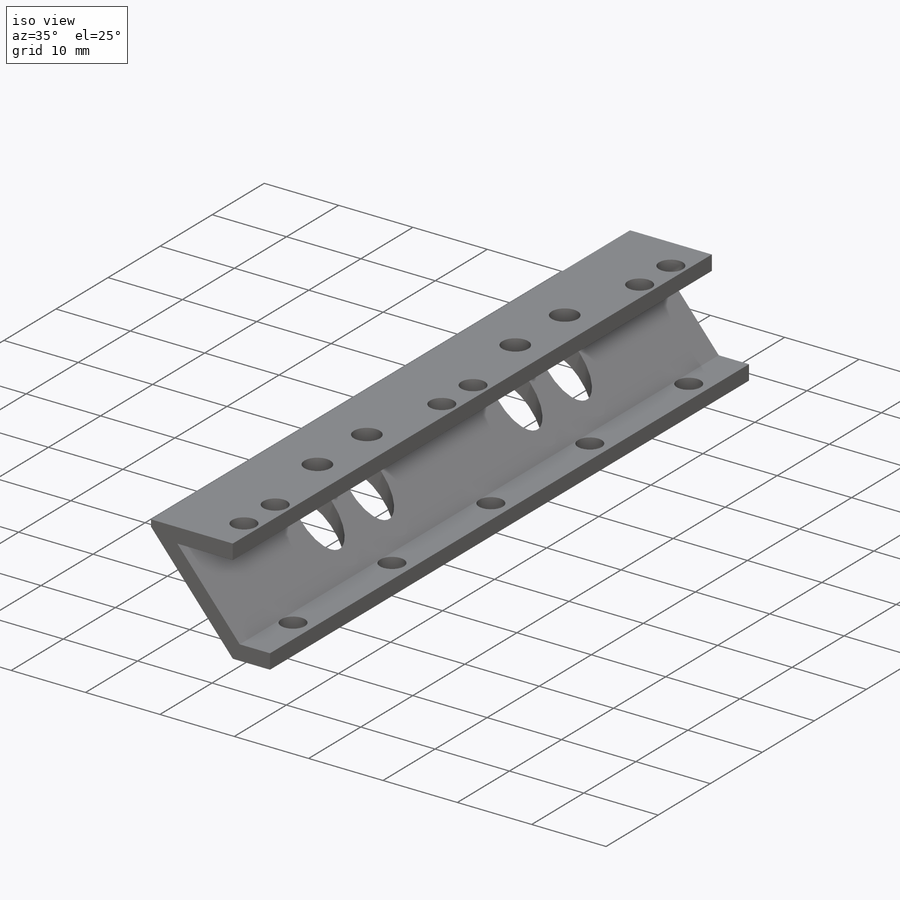
[diagram: iso view]
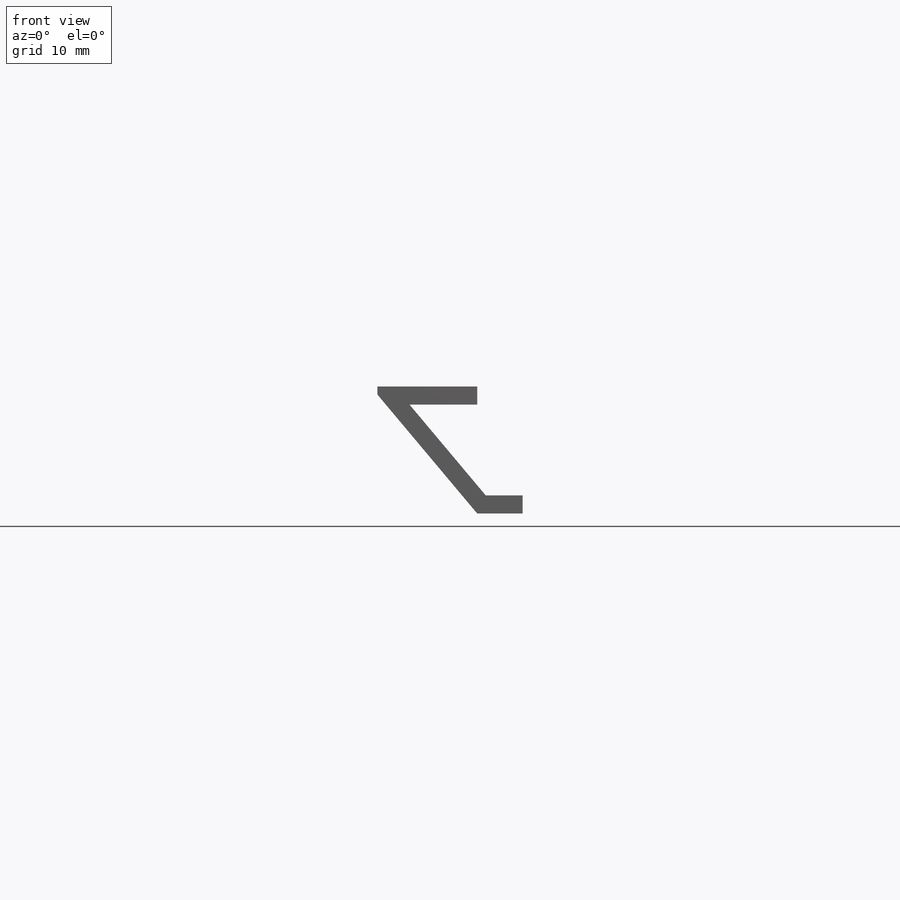
[diagram: front view]
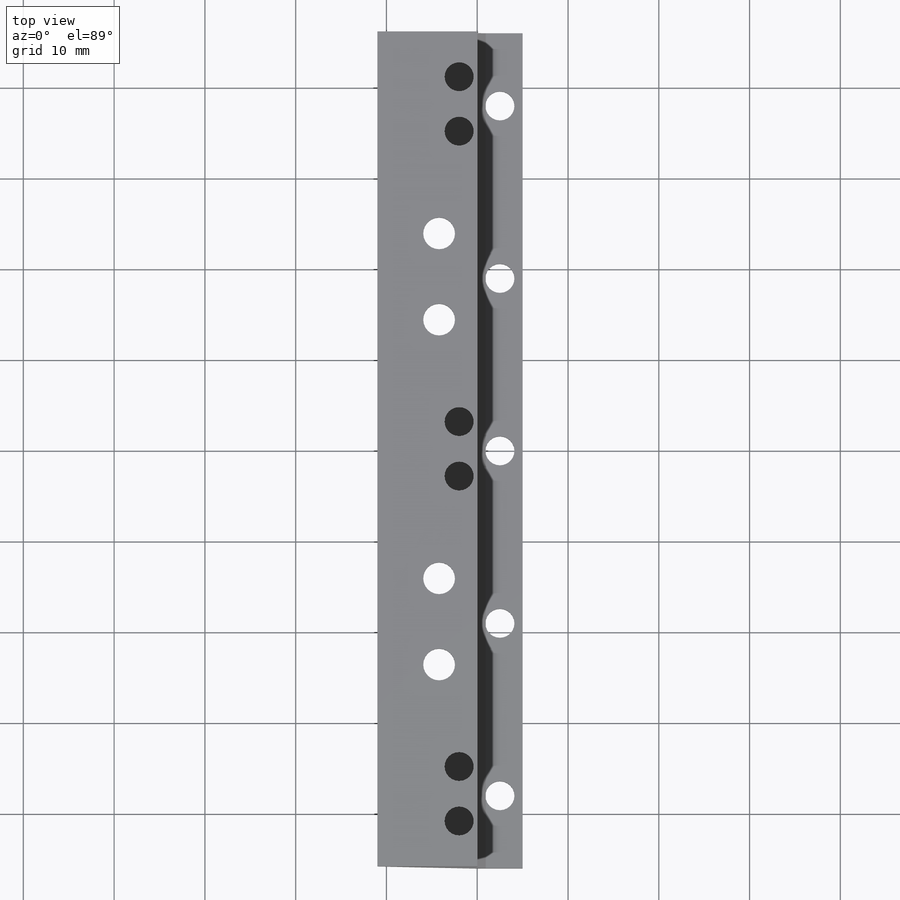
[diagram: top view]
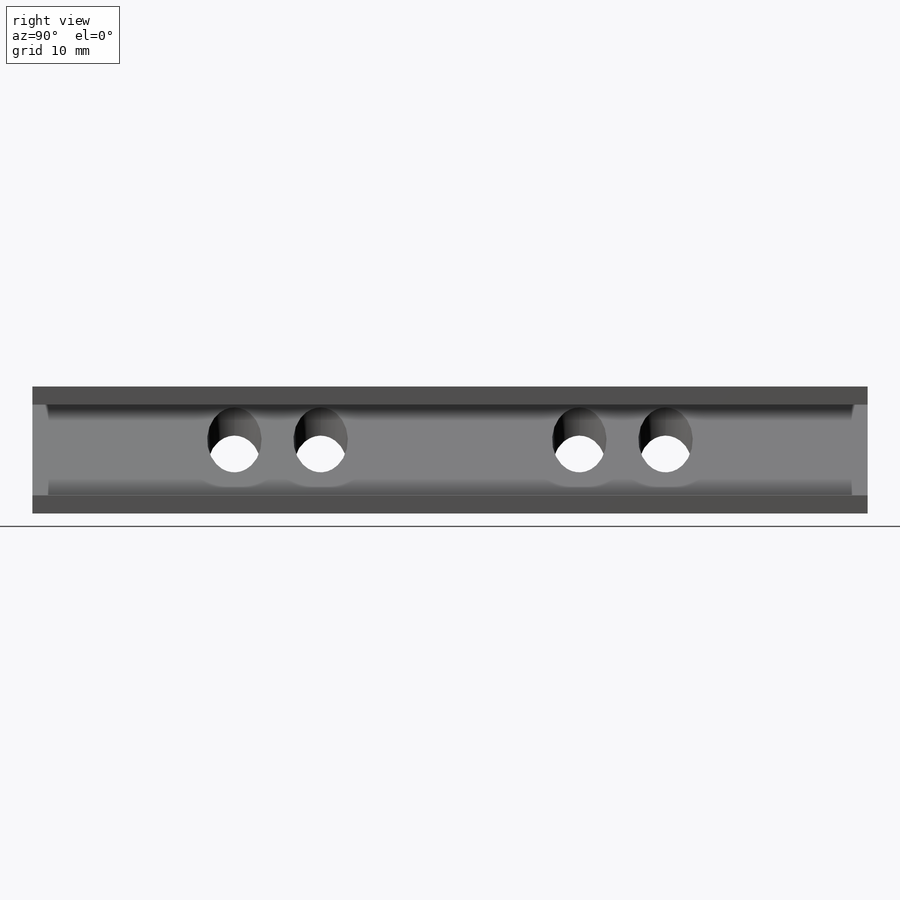
[diagram: right view]
SOLIDWORKS PART (.sldprt)
format: sldprt  version: not decoded by parser v0  size: 561,152 bytes
history: native  units: mm
features: sketch x6, cut_extrude x5, material x1, extrude x1 (+12 scaffold rows collapsed)
feature tree (25):
  scaffold x12  (default folders/planes/origin — collapsed)
  material  "재질 <지정안함>"
  sketch  "스케치1"  dims[c1.D1=2.0mm c1.D2=50.0deg c1.D3=2.0mm c1.D4=2.0mm c1.D5=12.0mm c1.D6=90.0deg c2.D6=5.0mm c2.D7=4.0mm c2.D8=3.5mm c2.D9=~10.928203mm c3.D7=11.0mm]
  extrude  "보스-돌출1"  Depth=46mm
  sketch  "스케치2"  dims[D10=~0.713448mm D1=38.0mm D2=38.0mm D3=3.0mm D4=3.0mm D5=3.0mm D6=3.0mm D7=3.0mm D8=3.0mm D9=2.0mm]
  cut_extrude  "컷-돌출1"  Depth=5mm
  sketch  "스케치3"  dims[D6=~2.026075mm D1=2.5mm D2=38.0mm D3=38.0mm D4=19.0mm D5=19.0mm]
  cut_extrude  "컷-돌출2"  Depth=5mm
  sketch  "스케치4"  dims[c1.D8=~0.647824mm c1.D1=90.0deg c2.D1=4.2mm c2.D2=16.0mm c2.D3=16.0mm c2.D4=9.5mm c2.D5=4.75mm c2.D6=9.5mm c2.D7=4.75mm]
  cut_extrude  "컷-돌출3"  Depth=10mm
  sketch  "스케치5"  dims[D1=~2.140349mm]
  cut_extrude  "컷-돌출4"  Depth=20mm
  sketch  "스케치6"
  cut_extrude  "컷-돌출5"  Depth=20mm
decode coverage: 11 of 12 modeling features carry decoded parameters
note: ~ marks probable driven/reference dimensions
note: suppression state not decoded; provenance and decode notes live in map.json
